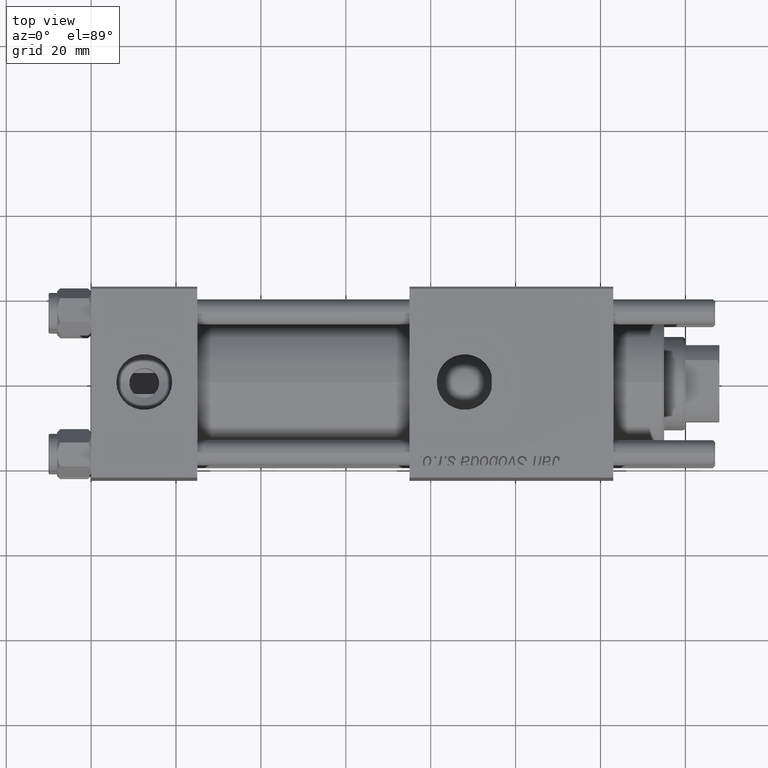
[diagram: clean part render]
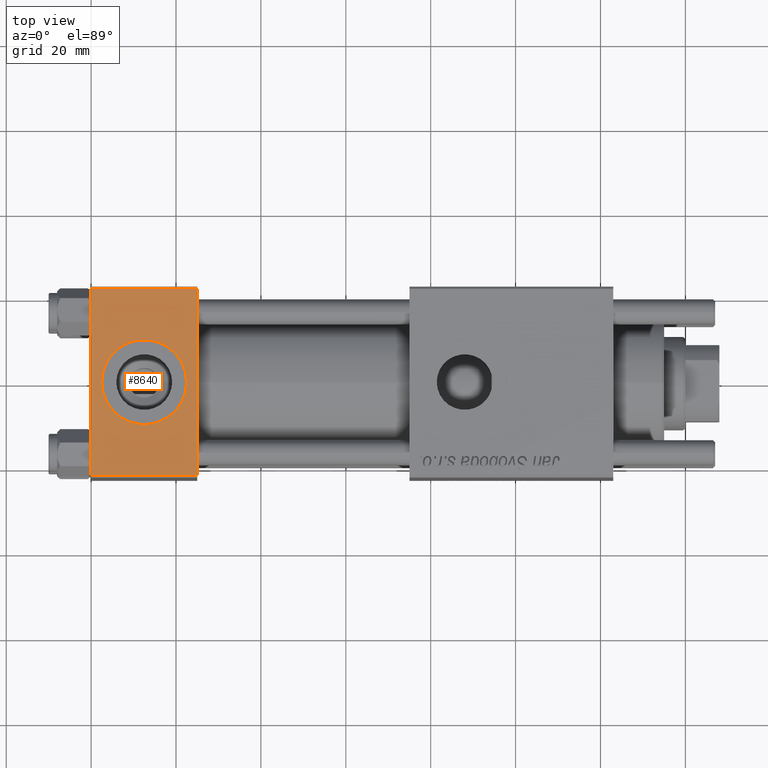
[diagram: same view with one face highlighted and labeled with its STEP entity id]
A machine part, top view. The second image highlights one B-rep face of the part: STEP entity #8640.
In plain terms, the highlighted planar face has unit normal (0, 0, -1).
Its self-contained STEP definition (entity closure, byte-faithful):
#1926 = AXIS2_PLACEMENT_3D ( 'NONE', #48237, #53576, #7476 ) ;
#3227 = DIRECTION ( 'NONE',  ( 1.000000000000000000, 0.000000000000000000, 0.000000000000000000 ) ) ;
#3530 = VECTOR ( 'NONE', #3227, 1000.000000000000000 ) ;
#4112 = ORIENTED_EDGE ( 'NONE', *, *, #22937, .F. ) ;
#6041 = VERTEX_POINT ( 'NONE', #13468 ) ;
#7476 = DIRECTION ( 'NONE',  ( 1.000000000000000000, 0.000000000000000000, 0.000000000000000000 ) ) ;
#8640 = ADVANCED_FACE ( 'NONE', ( #28169, #43033 ), #10329, .F. ) ;
#8990 = ORIENTED_EDGE ( 'NONE', *, *, #23915, .F. ) ;
#10329 = PLANE ( 'NONE',  #47259 ) ;
#10436 = DIRECTION ( 'NONE',  ( 0.000000000000000000, -1.000000000000000000, -7.709882115452476934E-17 ) ) ;
#11443 = LINE ( 'NONE', #33754, #31598 ) ;
#12012 = LINE ( 'NONE', #21241, #48174 ) ;
#12366 = CARTESIAN_POINT ( 'NONE',  ( 25.00000000000000000, 21.99999999999999289, 22.50000000000000355 ) ) ;
#12381 = CIRCLE ( 'NONE', #1926, 9.999999999999998224 ) ;
#12784 = DIRECTION ( 'NONE',  ( 0.000000000000000000, 0.000000000000000000, 1.000000000000000000 ) ) ;
#12963 = EDGE_CURVE ( 'NONE', #27262, #6041, #12012, .T. ) ;
#13053 = LINE ( 'NONE', #30312, #3530 ) ;
#13468 = CARTESIAN_POINT ( 'NONE',  ( 0.000000000000000000, 21.99999999999999289, 22.50000000000000355 ) ) ;
#18687 = ORIENTED_EDGE ( 'NONE', *, *, #12963, .T. ) ;
#21241 = CARTESIAN_POINT ( 'NONE',  ( 0.000000000000000000, 21.99999999999999289, 22.50000000000000355 ) ) ;
#22234 = ORIENTED_EDGE ( 'NONE', *, *, #34150, .T. ) ;
#22512 = ORIENTED_EDGE ( 'NONE', *, *, #49661, .T. ) ;
#22937 = EDGE_CURVE ( 'NONE', #43724, #29476, #12381, .T. ) ;
#23726 = DIRECTION ( 'NONE',  ( 0.000000000000000000, 7.709882115452476934E-17, -1.000000000000000000 ) ) ;
#23915 = EDGE_CURVE ( 'NONE', #27262, #39057, #34199, .T. ) ;
#24123 = CARTESIAN_POINT ( 'NONE',  ( 25.00000000000000000, 22.50000000000000000, 22.50000000000000355 ) ) ;
#24127 = CARTESIAN_POINT ( 'NONE',  ( 2.500000000000003997, -5.100766768294543310E-16, 22.50000000000000000 ) ) ;
#25539 = EDGE_LOOP ( 'NONE', ( #46819, #4112 ) ) ;
#25972 = VERTEX_POINT ( 'NONE', #36571 ) ;
#27262 = VERTEX_POINT ( 'NONE', #12366 ) ;
#28169 = FACE_BOUND ( 'NONE', #25539, .T. ) ;
#28768 = DIRECTION ( 'NONE',  ( 0.000000000000000000, 1.000000000000000000, 7.709882115452476934E-17 ) ) ;
#29476 = VERTEX_POINT ( 'NONE', #36649 ) ;
#30312 = CARTESIAN_POINT ( 'NONE',  ( 25.00000000000000000, -21.99999999999999289, 22.50000000000000000 ) ) ;
#30644 = CARTESIAN_POINT ( 'NONE',  ( 25.00000000000000000, -21.99999999999997868, 22.50000000000000000 ) ) ;
#31598 = VECTOR ( 'NONE', #34051, 1000.000000000000000 ) ;
#33754 = CARTESIAN_POINT ( 'NONE',  ( 0.000000000000000000, 22.50000000000000000, 22.50000000000000355 ) ) ;
#34051 = DIRECTION ( 'NONE',  ( 0.000000000000000000, -1.000000000000000000, -7.709882115452476934E-17 ) ) ;
#34150 = EDGE_CURVE ( 'NONE', #6041, #25972, #11443, .T. ) ;
#34199 = LINE ( 'NONE', #24123, #39986 ) ;
#36571 = CARTESIAN_POINT ( 'NONE',  ( 0.000000000000000000, -21.99999999999997868, 22.50000000000000000 ) ) ;
#36649 = CARTESIAN_POINT ( 'NONE',  ( 22.50000000000000000, -1.734723475976807094E-15, 22.50000000000000000 ) ) ;
#39057 = VERTEX_POINT ( 'NONE', #30644 ) ;
#39574 = DIRECTION ( 'NONE',  ( 1.000000000000000000, 0.000000000000000000, 0.000000000000000000 ) ) ;
#39986 = VECTOR ( 'NONE', #10436, 1000.000000000000000 ) ;
#42502 = CIRCLE ( 'NONE', #44403, 9.999999999999998224 ) ;
#43033 = FACE_OUTER_BOUND ( 'NONE', #48704, .T. ) ;
#43555 = DIRECTION ( 'NONE',  ( -1.000000000000000000, 0.000000000000000000, 0.000000000000000000 ) ) ;
#43724 = VERTEX_POINT ( 'NONE', #24127 ) ;
#44403 = AXIS2_PLACEMENT_3D ( 'NONE', #53545, #12784, #39574 ) ;
#46819 = ORIENTED_EDGE ( 'NONE', *, *, #54717, .F. ) ;
#47259 = AXIS2_PLACEMENT_3D ( 'NONE', #51381, #23726, #28768 ) ;
#48174 = VECTOR ( 'NONE', #43555, 1000.000000000000000 ) ;
#48237 = CARTESIAN_POINT ( 'NONE',  ( 12.50000000000000000, -1.734723475976807094E-15, 22.50000000000000000 ) ) ;
#48704 = EDGE_LOOP ( 'NONE', ( #22234, #22512, #8990, #18687 ) ) ;
#49661 = EDGE_CURVE ( 'NONE', #25972, #39057, #13053, .T. ) ;
#51381 = CARTESIAN_POINT ( 'NONE',  ( 25.00000000000000000, 22.50000000000000000, 22.50000000000000355 ) ) ;
#53545 = CARTESIAN_POINT ( 'NONE',  ( 12.50000000000000000, -1.734723475976807094E-15, 22.50000000000000000 ) ) ;
#53576 = DIRECTION ( 'NONE',  ( 0.000000000000000000, 0.000000000000000000, 1.000000000000000000 ) ) ;
#54717 = EDGE_CURVE ( 'NONE', #29476, #43724, #42502, .T. ) ;